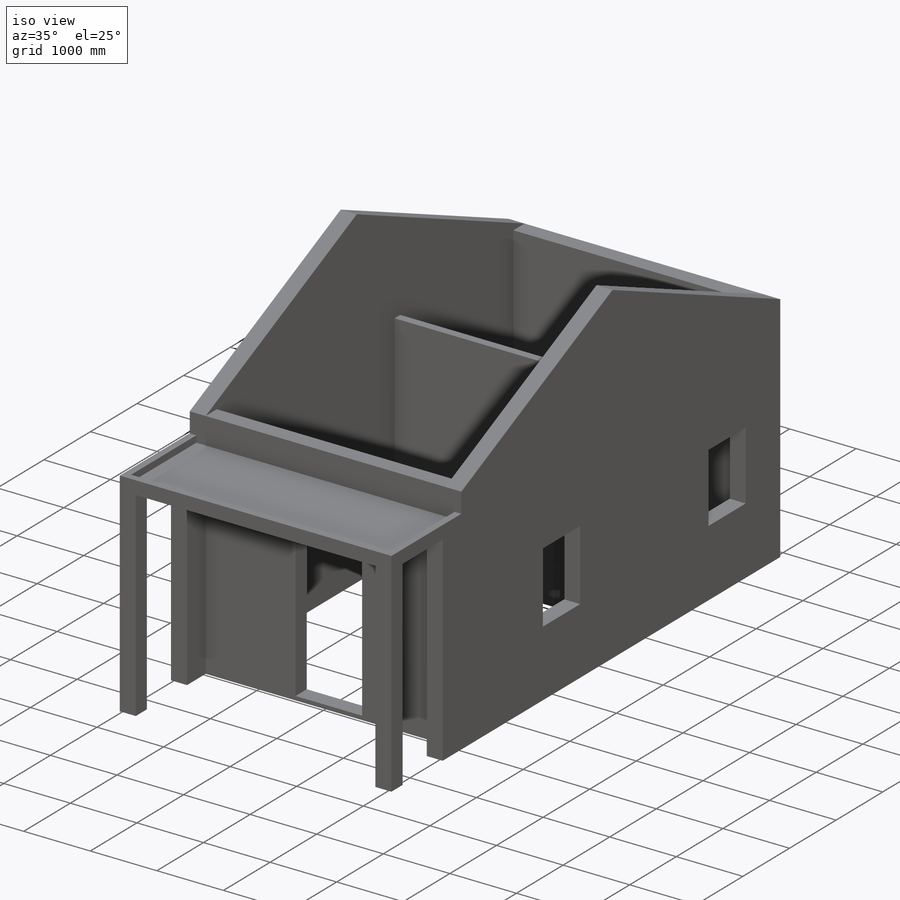
[diagram: iso view]
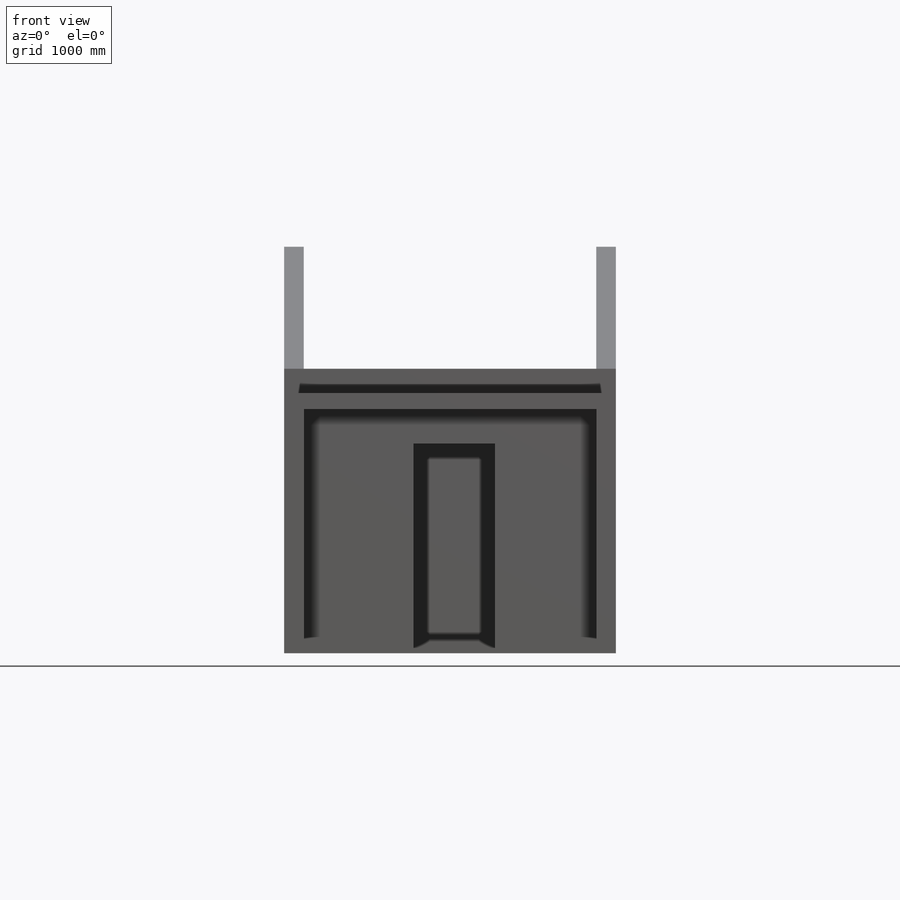
[diagram: front view]
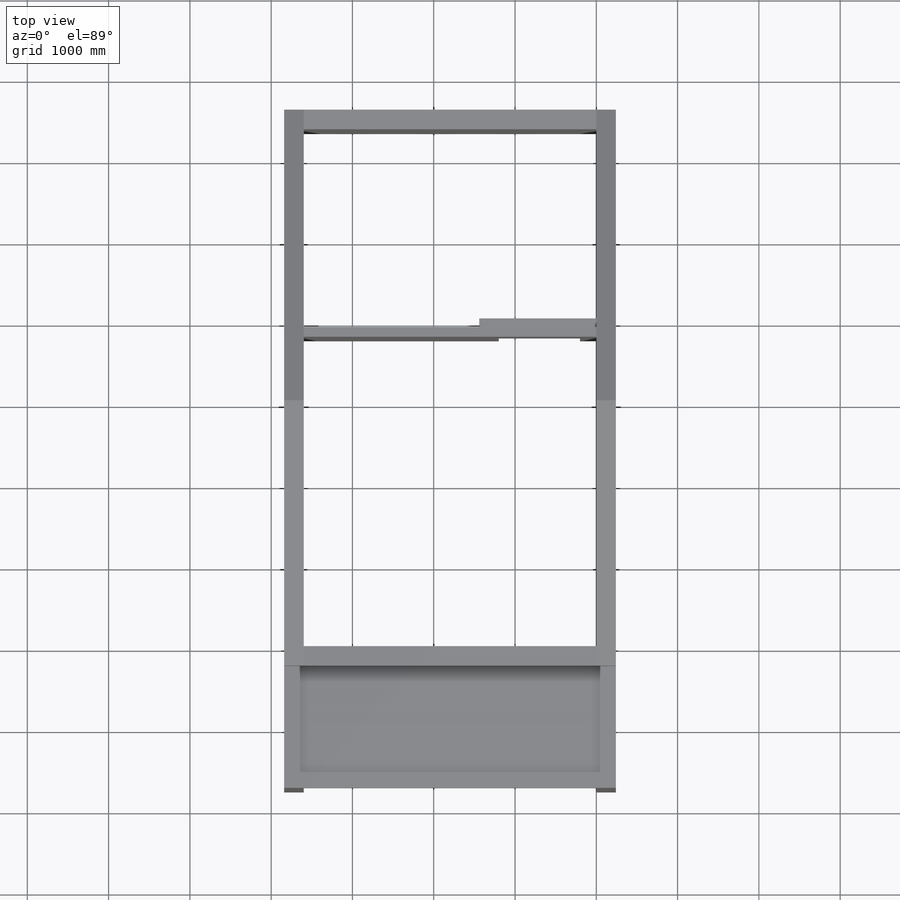
[diagram: top view]
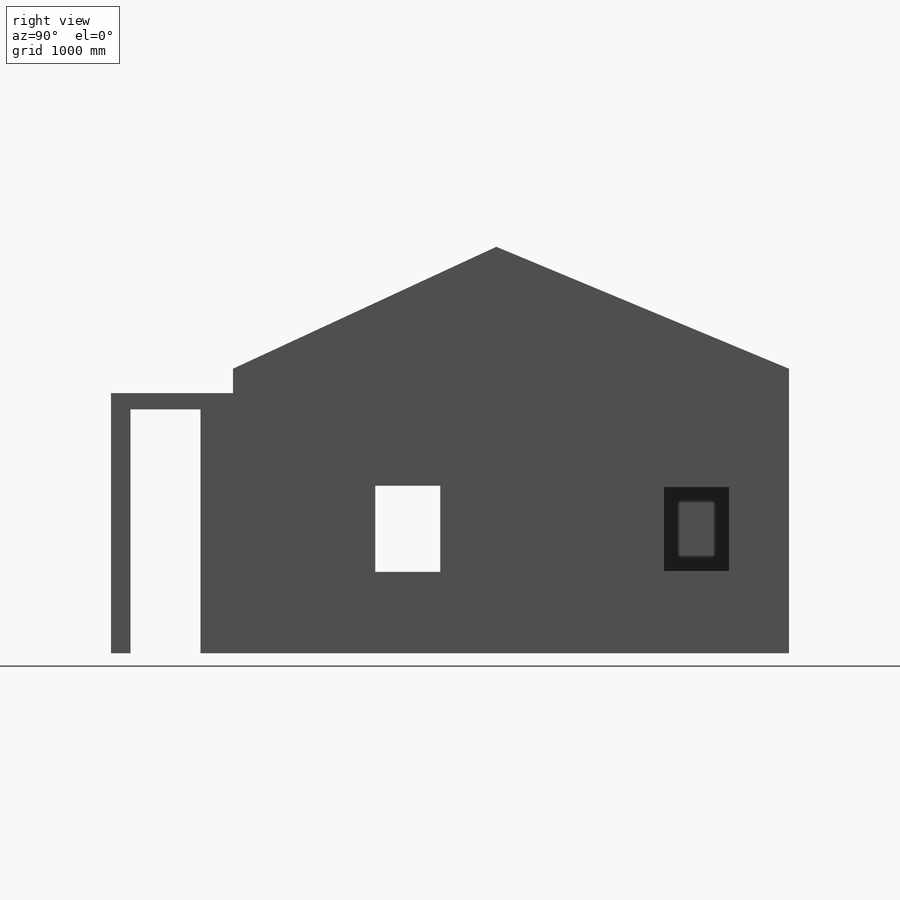
[diagram: right view]
SOLIDWORKS PART (.sldprt)
format: sldprt  version: not decoded by parser v0  size: 658,944 bytes
history: native  units: mm
features: sketch x11, plane x5, extrude x4, cut_extrude x4, mirror x2, material x1 (+9 scaffold rows collapsed)
feature tree (36):
  scaffold x9  (default folders/planes/origin — collapsed)
  material  "屋面瓦"
  plane  "前视基准面"
  plane  "上视基准面"
  plane  "右视基准面"
  sketch  "草图1"  dims[c1.D1=~98.159152mm c1.D2=~69.906702mm c2.D1=6360.0mm c2.D2=3600.0mm c3.D1=3500.0mm c3.D5=240.0mm c3.D6=10.0mm c3.D7=5.0mm]
  plane  "中间面-宽向"
  sketch  "草图14"  dims[D1=5000.0mm D2=3600.0mm D3=8930.0mm]
  extrude  "三角墙"  Depth=240mm
  mirror  "镜向1"
  sketch  "草图6"  dims[c1.D1=2400.0mm c1.D2=120.0mm c1.D3=120.0mm c1.D4=20.0mm c2.D1=2430.0mm c2.D2=2430.0mm c3.D1=3280.0mm c3.D5=120.0mm c3.D6=1.0mm c3.D7=5.0mm]
  plane  "房中间面"
  sketch  "草图12"  dims[c1.D1=~215.367706mm c1.D2=~1032.16226mm c2.D1=200.0mm c2.D2=120.0mm c2.D3=240.0mm c2.D4=1000.0mm]
  extrude  "房门框"  Depth=2520mm
  sketch  "草图10"  dims[c1.D2=~509.064817mm c1.D1=~1274.195623mm c2.D2=~466.214451mm c2.D1=2050.0mm c3.D2=800.0mm c3.D3=200.0mm]
  cut_extrude  "房门"  [1 undecoded]
  sketch  "草图4"  dims[c1.D1=~137.182739mm c1.D2=~81.374869mm c2.D1=1030.0mm c2.D2=800.0mm c2.D3=350.0mm c2.D4=960.0mm c3.D3=1010.0mm c3.D4=500.0mm]
  cut_extrude  "房窗"  [1 undecoded]
  sketch  "草图13"  dims[c1.D1=~1638.055199mm c1.D2=~774.390189mm c2.D1=2520.0mm c2.D2=100.0mm c2.D3=1000.0mm c2.D4=1330.0mm c3.D2=~1363.41483mm c3.D4=1250.0mm c4.D2=60.0mm]
  cut_extrude  "大门"  [1 undecoded]
  sketch  "草图15"  dims[c1.D1=~272.296227mm c1.D2=~1917.97616mm c2.D1=100.0mm c2.D2=3000.0mm c2.D3=1500.0mm]
  extrude  "凸台"  [1 undecoded]
  sketch  "草图16"  dims[c1.D1=~444.342632mm c1.D2=~446.349183mm c2.D1=~368.23234mm c2.D2=~446.349183mm c3.D1=400.0mm c3.D2=240.0mm c3.D3=240.0mm]
  extrude  "立柱"  [1 undecoded]
  mirror  "镜向-立柱"
  sketch  "草图17"  dims[D1=100.0mm D5=100.0mm D6=10.0mm D7=5.0mm]
  sketch  "草图18"  dims[c1.D1=~1198.956514mm c1.D2=~1114.522957mm c2.D1=1060.0mm c2.D2=800.0mm c2.D3=1000.0mm c2.D4=1500.0mm]
  cut_extrude  "厅窗"  [1 undecoded]
decode coverage: 13 of 21 modeling features carry decoded parameters
note: ~ marks probable driven/reference dimensions
note: 6 parameter values undecoded
summary: no parameter record found for 6 features
note: suppression state not decoded; provenance and decode notes live in map.json
